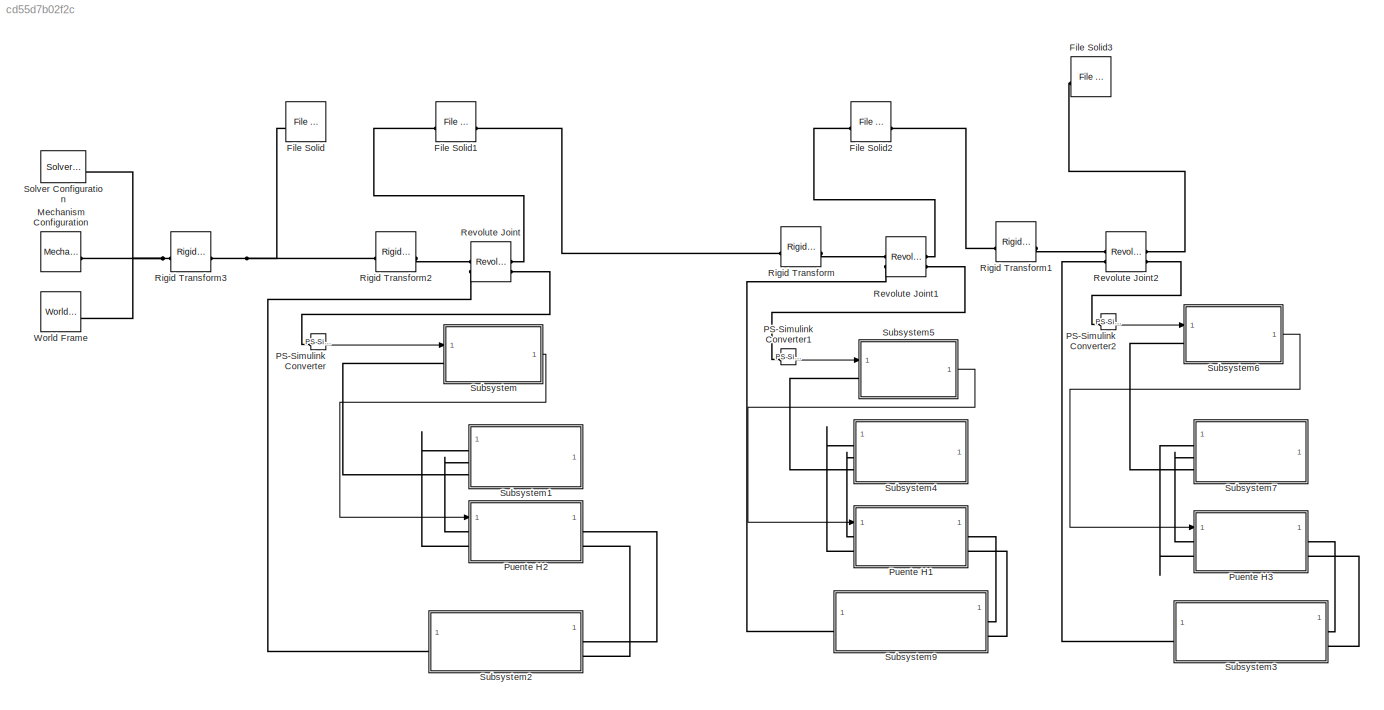
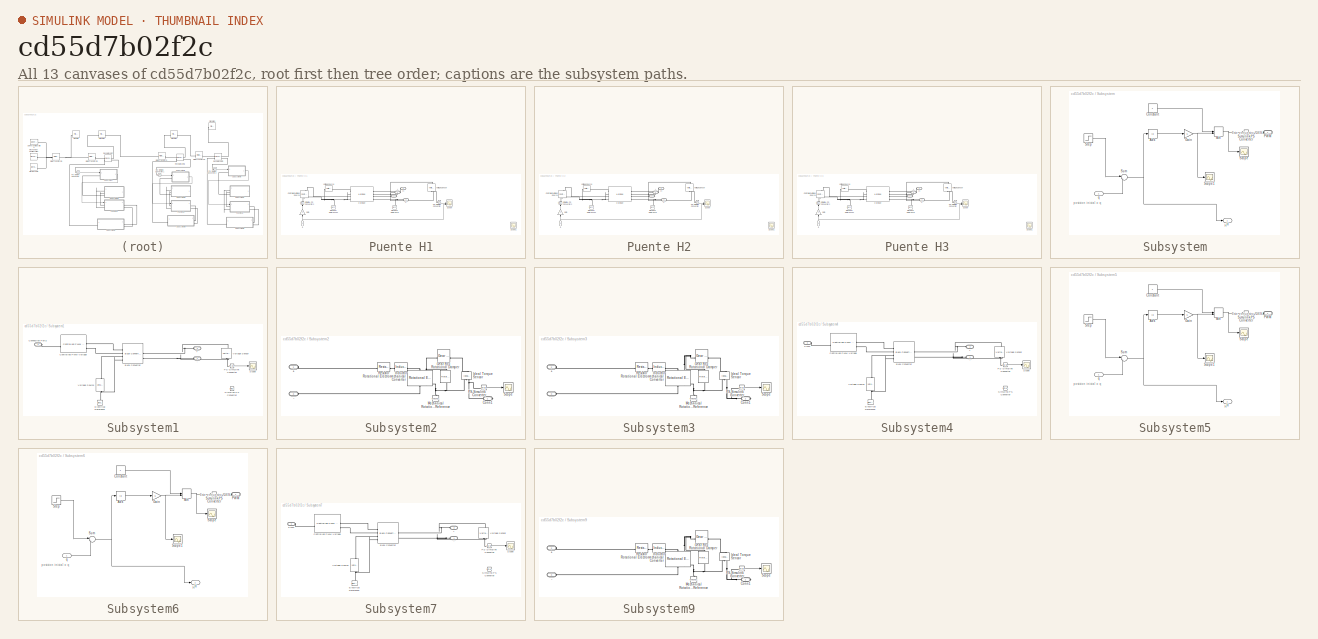
[diagram: thumbnail index - all 13 canvases of the model, root first then tree order]
MODEL slx_cd55d7b02f2c
KIND model
CONFIG AbsTol = auto
CONFIG EnableMultiTasking = off
CONFIG FixedStep = auto
CONFIG MaxStep = auto
CONFIG MinStep = auto
CONFIG RelTol = 1e-3
CONFIG SampleTimeConstraint = Unconstrained
CONFIG SolverName = VariableStepAuto
CONFIG StartTime = 0.0
CONFIG StopTime = 1
BLOCK [Reference] File Solid  REF=sm_lib/Body Elements/File Solid
  SourceBlock = sm_lib/Body Elements/File Solid
  SourceType = File Solid
BLOCK [Reference] File Solid1  REF=sm_lib/Body Elements/File Solid
  SourceBlock = sm_lib/Body Elements/File Solid
  SourceType = File Solid
BLOCK [Reference] File Solid2  REF=sm_lib/Body Elements/File Solid
  SourceBlock = sm_lib/Body Elements/File Solid
  SourceType = File Solid
BLOCK [Reference] File Solid3  REF=sm_lib/Body Elements/File Solid
  SourceBlock = sm_lib/Body Elements/File Solid
  SourceType = File Solid
BLOCK [Reference] Mechanism Configuration  REF=sm_lib/Utilities/Mechanism
Configuration
  SourceBlock = sm_lib/Utilities/Mechanism\nConfiguration
  SourceType = Mechanism\nConfiguration
BLOCK [Reference] PS-Simulink Converter  REF=nesl_utility/PS-Simulink
Converter
  SourceBlock = nesl_utility/PS-Simulink\nConverter
  SourceType = PS-Simulink\nConverter
BLOCK [Reference] PS-Simulink Converter1  REF=nesl_utility/PS-Simulink
Converter
  SourceBlock = nesl_utility/PS-Simulink\nConverter
  SourceType = PS-Simulink\nConverter
BLOCK [Reference] PS-Simulink Converter2  REF=nesl_utility/PS-Simulink
Converter
  SourceBlock = nesl_utility/PS-Simulink\nConverter
  SourceType = PS-Simulink\nConverter
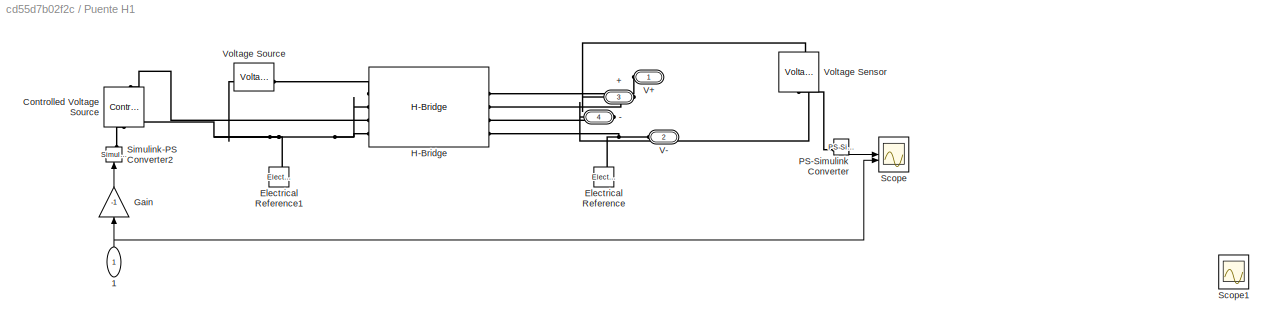
BLOCK [SubSystem] Puente H1
BLOCK [PMIOPort] Puente H1/+
  NameLocation = top
  Port = 3
  Side = Right
BLOCK [PMIOPort] Puente H1/-
  NameLocation = top
  Port = 4
  Side = Right
BLOCK [Inport] Puente H1/1
  NameLocation = right
BLOCK [Reference] Puente H1/Controlled Voltage Source  REF=fl_lib/Electrical/Electrical Sources/Controlled Voltage
Source
  NameLocation = right
  SourceBlock = fl_lib/Electrical/Electrical Sources/Controlled Voltage\nSource
  SourceType = Controlled Voltage\nSource
BLOCK [Reference] Puente H1/Electrical Reference  REF=fl_lib/Electrical/Electrical Elements/Electrical Reference
  NameLocation = right
  SourceBlock = fl_lib/Electrical/Electrical Elements/Electrical Reference
  SourceType = Electrical Reference
BLOCK [Reference] Puente H1/Electrical Reference1  REF=fl_lib/Electrical/Electrical Elements/Electrical Reference
  NameLocation = right
  SourceBlock = fl_lib/Electrical/Electrical Elements/Electrical Reference
  SourceType = Electrical Reference
BLOCK [Gain] Puente H1/Gain
  Gain = -1
  NameLocation = right
BLOCK [Reference] Puente H1/H-Bridge  REF=ee_lib/Semiconductors &
Converters/Converters/H-Bridge
  SourceBlock = ee_lib/Semiconductors &\nConverters/Converters/H-Bridge
  SourceType = H-Bridge
BLOCK [Reference] Puente H1/PS-Simulink Converter  REF=nesl_utility/PS-Simulink
Converter
  SourceBlock = nesl_utility/PS-Simulink\nConverter
  SourceType = PS-Simulink\nConverter
BLOCK [Scope] Puente H1/Scope
  ActiveDisplayYMaximum = 26.96741
  ActiveDisplayYMinimum = -21.42344
  ContainerLayout = {"WindowBounds":[320,156,1280,768],"gridDimensions":{"w":1,"h":1},"tileCount":1,"tileCoverage":1,"columnWeights":1,"rowWeights":1,"tileOccupancy":{"children":[{"id":"/Scope8"},{"id":"/Puente H3/Scope"},{"id":"/Scope5"},{"id":"/Puente H2/Scope"},{"id":"/Scope1"}]}}  <repeated x3 — deduplicated; at blocks: Scope>
  DataLoggingVariableName = ScopeData3
  Floating = off
  GraphicalSettings = {"GraphicalSettings":{"LegacySettings":true,"Style":{"AxesScalingProperties":{"ScaleAxesLimitsAtStop":false},"Style":{"AxesColor":"[0 0 0]","ChannelNames":[""],"ColorOrder":"[1 0.909803921568627 0.392156862745098;0.149019607843137 0.549019607843137 0.866666666666667;0.96078431372549 0.466666666666667 0.16078431372549;0.286274509803922 0.858823529411765 0.250980392156863;0.752941176470588 0.3607843...<+516ch>  <repeated x3 — deduplicated; at blocks: Scope>
  MultipleDisplayCache = [{"MaxYLimMag":26.96741,"MaxYLimReal":26.96741,"MinYLimMag":0,"MinYLimReal":-21.42344,"PlotAsMagnitudePhase":false,"ShowGrid":true,"ShowLegend":false,"Title":"%<SignalLabel>","YLabel":""}]  <repeated x3 — deduplicated; at blocks: Scope>
  NumInputPorts = 2
  ScopeFrameLocation = container
  WasSavedAsWebScope = on
  WindowPosition = [320.000000,156.000000,1280.000000,768.000000,]
BLOCK [Scope] Puente H1/Scope1
  ActiveDisplayYMaximum = 1.9626
  ActiveDisplayYMinimum = -1.9554
  DataLoggingVariableName = ScopeData5
  Floating = off
  GraphicalSettings = {"GraphicalSettings":{"LegacySettings":true,"Style":{"AxesScalingProperties":{"ScaleAxesLimitsAtStop":false},"Style":{"AxesColor":"[0 0 0]","ChannelNames":[""],"ColorOrder":"[1 0.909803921568627 0.392156862745098;0.149019607843137 0.549019607843137 0.866666666666667;0.96078431372549 0.466666666666667 0.16078431372549;0.286274509803922 0.858823529411765 0.250980392156863;0.752941176470588 0.3607843...<+513ch>  <repeated x3 — deduplicated; at blocks: Scope1>
  MultipleDisplayCache = [{"MaxYLimMag":1.9626,"MaxYLimReal":1.9626,"MinYLimMag":0,"MinYLimReal":-1.9554,"PlotAsMagnitudePhase":false,"ShowGrid":true,"ShowLegend":false,"Title":"%<SignalLabel>","YLabel":""}]  <repeated x3 — deduplicated; at blocks: Scope1>
  NumInputPorts = 1
  WasSavedAsWebScope = on
BLOCK [Reference] Puente H1/Simulink-PS Converter2  REF=nesl_utility/Simulink-PS
Converter
  NameLocation = right
  SourceBlock = nesl_utility/Simulink-PS\nConverter
  SourceType = Simulink-PS\nConverter
BLOCK [PMIOPort] Puente H1/V+
  NameLocation = top
  Side = Left
BLOCK [PMIOPort] Puente H1/V-
  NameLocation = top
  Port = 2
  Side = Left
BLOCK [Reference] Puente H1/Voltage Sensor  REF=fl_lib/Electrical/Electrical Sensors/Voltage Sensor
  NameLocation = right
  SourceBlock = fl_lib/Electrical/Electrical Sensors/Voltage Sensor
  SourceType = Voltage Sensor
BLOCK [Reference] Puente H1/Voltage Source  REF=ee_lib/Sources/Voltage Source
  SourceBlock = ee_lib/Sources/Voltage Source
  SourceType = Voltage Source
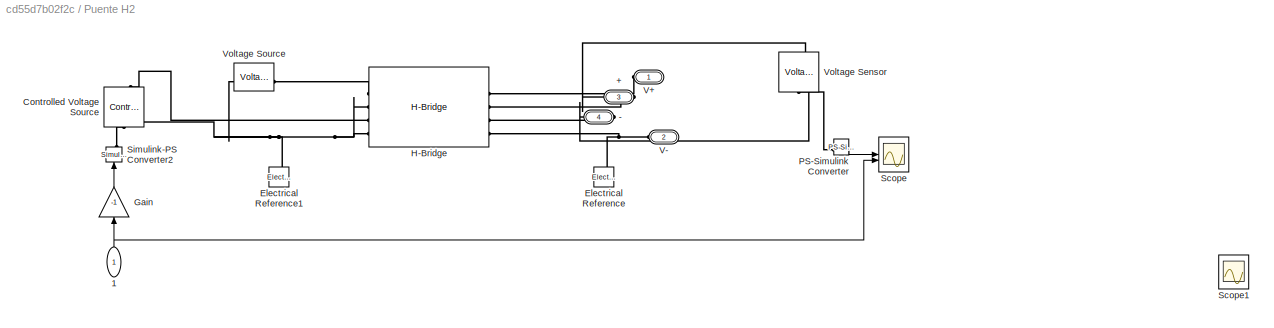
BLOCK [SubSystem] Puente H2
BLOCK [PMIOPort] Puente H2/+
  NameLocation = top
  Port = 3
  Side = Right
BLOCK [PMIOPort] Puente H2/-
  NameLocation = top
  Port = 4
  Side = Right
BLOCK [Inport] Puente H2/1
  NameLocation = right
BLOCK [Reference] Puente H2/Controlled Voltage Source  REF=fl_lib/Electrical/Electrical Sources/Controlled Voltage
Source
  NameLocation = right
  SourceBlock = fl_lib/Electrical/Electrical Sources/Controlled Voltage\nSource
  SourceType = Controlled Voltage\nSource
BLOCK [Reference] Puente H2/Electrical Reference  REF=fl_lib/Electrical/Electrical Elements/Electrical Reference
  NameLocation = right
  SourceBlock = fl_lib/Electrical/Electrical Elements/Electrical Reference
  SourceType = Electrical Reference
BLOCK [Reference] Puente H2/Electrical Reference1  REF=fl_lib/Electrical/Electrical Elements/Electrical Reference
  NameLocation = right
  SourceBlock = fl_lib/Electrical/Electrical Elements/Electrical Reference
  SourceType = Electrical Reference
BLOCK [Gain] Puente H2/Gain
  Gain = -1
  NameLocation = right
BLOCK [Reference] Puente H2/H-Bridge  REF=ee_lib/Semiconductors &
Converters/Converters/H-Bridge
  SourceBlock = ee_lib/Semiconductors &\nConverters/Converters/H-Bridge
  SourceType = H-Bridge
BLOCK [Reference] Puente H2/PS-Simulink Converter  REF=nesl_utility/PS-Simulink
Converter
  SourceBlock = nesl_utility/PS-Simulink\nConverter
  SourceType = PS-Simulink\nConverter
BLOCK [Scope] Puente H2/Scope
  ActiveDisplayYMaximum = 26.96741
  ActiveDisplayYMinimum = -21.42344
  DataLoggingVariableName = ScopeData3
  Floating = off
  NumInputPorts = 2
  ScopeFrameLocation = container
  WasSavedAsWebScope = on
  WindowPosition = [320.000000,156.000000,1280.000000,768.000000,]
BLOCK [Scope] Puente H2/Scope1
  ActiveDisplayYMaximum = 1.9626
  ActiveDisplayYMinimum = -1.9554
  DataLoggingVariableName = ScopeData5
  Floating = off
  NumInputPorts = 1
  WasSavedAsWebScope = on
BLOCK [Reference] Puente H2/Simulink-PS Converter2  REF=nesl_utility/Simulink-PS
Converter
  NameLocation = right
  SourceBlock = nesl_utility/Simulink-PS\nConverter
  SourceType = Simulink-PS\nConverter
BLOCK [PMIOPort] Puente H2/V+
  NameLocation = top
  Side = Left
BLOCK [PMIOPort] Puente H2/V-
  NameLocation = top
  Port = 2
  Side = Left
BLOCK [Reference] Puente H2/Voltage Sensor  REF=fl_lib/Electrical/Electrical Sensors/Voltage Sensor
  NameLocation = right
  SourceBlock = fl_lib/Electrical/Electrical Sensors/Voltage Sensor
  SourceType = Voltage Sensor
BLOCK [Reference] Puente H2/Voltage Source  REF=ee_lib/Sources/Voltage Source
  SourceBlock = ee_lib/Sources/Voltage Source
  SourceType = Voltage Source
BLOCK [SubSystem] Puente H3
BLOCK [PMIOPort] Puente H3/+
  NameLocation = top
  Port = 3
  Side = Right
BLOCK [PMIOPort] Puente H3/-
  NameLocation = top
  Port = 4
  Side = Right
BLOCK [Inport] Puente H3/1
  NameLocation = right
BLOCK [Reference] Puente H3/Controlled Voltage Source  REF=fl_lib/Electrical/Electrical Sources/Controlled Voltage
Source
  NameLocation = right
  SourceBlock = fl_lib/Electrical/Electrical Sources/Controlled Voltage\nSource
  SourceType = Controlled Voltage\nSource
BLOCK [Reference] Puente H3/Electrical Reference  REF=fl_lib/Electrical/Electrical Elements/Electrical Reference
  NameLocation = right
  SourceBlock = fl_lib/Electrical/Electrical Elements/Electrical Reference
  SourceType = Electrical Reference
BLOCK [Reference] Puente H3/Electrical Reference1  REF=fl_lib/Electrical/Electrical Elements/Electrical Reference
  NameLocation = right
  SourceBlock = fl_lib/Electrical/Electrical Elements/Electrical Reference
  SourceType = Electrical Reference
BLOCK [Gain] Puente H3/Gain
  Gain = -1
  NameLocation = right
BLOCK [Reference] Puente H3/H-Bridge  REF=ee_lib/Semiconductors &
Converters/Converters/H-Bridge
  SourceBlock = ee_lib/Semiconductors &\nConverters/Converters/H-Bridge
  SourceType = H-Bridge
BLOCK [Reference] Puente H3/PS-Simulink Converter  REF=nesl_utility/PS-Simulink
Converter
  SourceBlock = nesl_utility/PS-Simulink\nConverter
  SourceType = PS-Simulink\nConverter
BLOCK [Scope] Puente H3/Scope
  ActiveDisplayYMaximum = 26.96741
  ActiveDisplayYMinimum = -21.42344
  DataLoggingVariableName = ScopeData3
  Floating = off
  NumInputPorts = 2
  ScopeFrameLocation = container
  WasSavedAsWebScope = on
  WindowPosition = [320.000000,156.000000,1280.000000,768.000000,]
BLOCK [Scope] Puente H3/Scope1
  ActiveDisplayYMaximum = 1.9626
  ActiveDisplayYMinimum = -1.9554
  DataLoggingVariableName = ScopeData5
  Floating = off
  NumInputPorts = 1
  WasSavedAsWebScope = on
BLOCK [Reference] Puente H3/Simulink-PS Converter2  REF=nesl_utility/Simulink-PS
Converter
  NameLocation = right
  SourceBlock = nesl_utility/Simulink-PS\nConverter
  SourceType = Simulink-PS\nConverter
BLOCK [PMIOPort] Puente H3/V+
  NameLocation = top
  Side = Left
BLOCK [PMIOPort] Puente H3/V-
  NameLocation = top
  Port = 2
  Side = Left
BLOCK [Reference] Puente H3/Voltage Sensor  REF=fl_lib/Electrical/Electrical Sensors/Voltage Sensor
  NameLocation = right
  SourceBlock = fl_lib/Electrical/Electrical Sensors/Voltage Sensor
  SourceType = Voltage Sensor
BLOCK [Reference] Puente H3/Voltage Source  REF=ee_lib/Sources/Voltage Source
  SourceBlock = ee_lib/Sources/Voltage Source
  SourceType = Voltage Source
BLOCK [Reference] Revolute Joint  REF=sm_lib/Joints/Revolute Joint
  SourceBlock = sm_lib/Joints/Revolute Joint
  SourceType = Revolute Joint
BLOCK [Reference] Revolute Joint1  REF=sm_lib/Joints/Revolute Joint
  SourceBlock = sm_lib/Joints/Revolute Joint
  SourceType = Revolute Joint
BLOCK [Reference] Revolute Joint2  REF=sm_lib/Joints/Revolute Joint
  SourceBlock = sm_lib/Joints/Revolute Joint
  SourceType = Revolute Joint
BLOCK [Reference] Rigid Transform  REF=sm_lib/Frames and
Transforms/Rigid
Transform
  SourceBlock = sm_lib/Frames and\nTransforms/Rigid\nTransform
  SourceType = Rigid\nTransform
BLOCK [Reference] Rigid Transform1  REF=sm_lib/Frames and
Transforms/Rigid
Transform
  SourceBlock = sm_lib/Frames and\nTransforms/Rigid\nTransform
  SourceType = Rigid\nTransform
BLOCK [Reference] Rigid Transform2  REF=sm_lib/Frames and
Transforms/Rigid
Transform
  SourceBlock = sm_lib/Frames and\nTransforms/Rigid\nTransform
  SourceType = Rigid\nTransform
BLOCK [Reference] Rigid Transform3  REF=sm_lib/Frames and
Transforms/Rigid
Transform
  SourceBlock = sm_lib/Frames and\nTransforms/Rigid\nTransform
  SourceType = Rigid\nTransform
BLOCK [Reference] Solver Configuration  REF=nesl_utility/Solver
Configuration
  SourceBlock = nesl_utility/Solver\nConfiguration
  SourceType = Solver\nConfiguration
BLOCK [SubSystem] Subsystem
BLOCK [Abs] Subsystem/Abs
  SaturateOnIntegerOverflow = off
BLOCK [Constant] Subsystem/Constant
BLOCK [Gain] Subsystem/Gain
  Gain = 5
BLOCK [Outport] Subsystem/H
BLOCK [MinMax] Subsystem/Min
  Inputs = 2
BLOCK [PMIOPort] Subsystem/PWM
  NameLocation = top
  Side = Left
BLOCK [Scope] Subsystem/Scope
  Floating = off
  GraphicalSettings = {"GraphicalSettings":{"LegacySettings":true,"Style":{"Style":{"PlotType":"Auto"}}}}
  NumInputPorts = 1
  WasSavedAsWebScope = on
BLOCK [Scope] Subsystem/Scope1
  DataLoggingVariableName = ScopeData1
  Floating = off
  GraphicalSettings = {"GraphicalSettings":{"LegacySettings":true,"Style":{"Style":{"PlotType":"Auto"}}}}
  NumInputPorts = 1
  WasSavedAsWebScope = on
BLOCK [Reference] Subsystem/Simulink-PS Converter  REF=nesl_utility/Simulink-PS
Converter
  SourceBlock = nesl_utility/Simulink-PS\nConverter
  SourceType = Simulink-PS\nConverter
BLOCK [Step] Subsystem/Step
  After = pi/2
  SampleTime = 0
BLOCK [Sum] Subsystem/Sum
  Inputs = |+-
BLOCK [Inport] Subsystem/q
BLOCK [SubSystem] Subsystem1
BLOCK [PMIOPort] Subsystem1/+
  NameLocation = top
  Port = 2
  Side = Left
BLOCK [PMIOPort] Subsystem1/-
  NameLocation = top
  Side = Left
BLOCK [Reference] Subsystem1/Buck Converter  REF=ee_lib/Semiconductors &
Converters/Converters/Buck Converter
  SourceBlock = ee_lib/Semiconductors &\nConverters/Converters/Buck Converter
  SourceType = Buck Converter
BLOCK [PMIOPort] Subsystem1/Connection Port2
  Port = 3
  Side = Left
BLOCK [Reference] Subsystem1/Controlled PWM Voltage  REF=ee_lib/Integrated Circuits/Controlled PWM
Voltage
  SourceBlock = ee_lib/Integrated Circuits/Controlled PWM\nVoltage
  SourceType = Controlled PWM\nVoltage
BLOCK [Reference] Subsystem1/Electrical Reference  REF=fl_lib/Electrical/Electrical Elements/Electrical Reference
  NameLocation = right
  SourceBlock = fl_lib/Electrical/Electrical Elements/Electrical Reference
  SourceType = Electrical Reference
BLOCK [Reference] Subsystem1/PS-Simulink Converter  REF=nesl_utility/PS-Simulink
Converter
  SourceBlock = nesl_utility/PS-Simulink\nConverter
  SourceType = PS-Simulink\nConverter
BLOCK [Scope] Subsystem1/Scope
  DataLoggingVariableName = ScopeData2
  Floating = off
  GraphicalSettings = {"GraphicalSettings":{"LegacySettings":true,"Style":{"Style":{"PlotType":"Auto"}}}}
  NumInputPorts = 1
  WasSavedAsWebScope = on
BLOCK [Reference] Subsystem1/Simulink-PS Converter  REF=nesl_utility/Simulink-PS
Converter
  SourceBlock = nesl_utility/Simulink-PS\nConverter
  SourceType = Simulink-PS\nConverter
BLOCK [Reference] Subsystem1/Voltage Sensor  REF=fl_lib/Electrical/Electrical Sensors/Voltage Sensor
  NameLocation = right
  SourceBlock = fl_lib/Electrical/Electrical Sensors/Voltage Sensor
  SourceType = Voltage Sensor
BLOCK [Reference] Subsystem1/Voltage Source  REF=ee_lib/Sources/Voltage Source
  NameLocation = right
  SourceBlock = ee_lib/Sources/Voltage Source
  SourceType = Voltage Source
BLOCK [SubSystem] Subsystem2
  NameLocation = top
BLOCK [PMIOPort] Subsystem2/+
  NameLocation = top
  Port = 2
  Side = Left
BLOCK [PMIOPort] Subsystem2/-
  Port = 3
  Side = Left
BLOCK [PMIOPort] Subsystem2/Conn1
  Side = Right
BLOCK [Reference] Subsystem2/Gear Box  REF=fl_lib/Mechanical/Mechanisms/Gear Box
  SourceBlock = fl_lib/Mechanical/Mechanisms/Gear Box
  SourceType = Gear Box
BLOCK [Reference] Subsystem2/Ideal Torque Sensor  REF=fl_lib/Mechanical/Mechanical Sensors/Ideal Torque Sensor
  NameLocation = left
  SourceBlock = fl_lib/Mechanical/Mechanical Sensors/Ideal Torque Sensor
  SourceType = Ideal Torque Sensor
BLOCK [Reference] Subsystem2/Inductor  REF=fl_lib/Electrical/Electrical Elements/Inductor
  SourceBlock = fl_lib/Electrical/Electrical Elements/Inductor
  SourceType = Inductor
BLOCK [Reference] Subsystem2/Mechanical Rotational Reference  REF=fl_lib/Mechanical/Rotational Elements/Mechanical
Rotational Reference
  NameLocation = right
  SourceBlock = fl_lib/Mechanical/Rotational Elements/Mechanical\nRotational Reference
  SourceType = Mechanical\nRotational Reference
BLOCK [Reference] Subsystem2/PS-Simulink Converter  REF=nesl_utility/PS-Simulink
Converter
  SourceBlock = nesl_utility/PS-Simulink\nConverter
  SourceType = PS-Simulink\nConverter
BLOCK [Reference] Subsystem2/Resistor  REF=fl_lib/Electrical/Electrical Elements/Resistor
  SourceBlock = fl_lib/Electrical/Electrical Elements/Resistor
  SourceType = Resistor
BLOCK [Reference] Subsystem2/Rotational Damper  REF=fl_lib/Mechanical/Rotational Elements/Rotational Damper
  NameLocation = left
  SourceBlock = fl_lib/Mechanical/Rotational Elements/Rotational Damper
  SourceType = Rotational Damper
BLOCK [Reference] Subsystem2/Rotational Electromechanical Converter  REF=fl_lib/Electrical/Electrical Elements/Rotational
Electromechanical
Converter
  NameLocation = right
  SourceBlock = fl_lib/Electrical/Electrical Elements/Rotational\nElectromechanical\nConverter
  SourceType = Rotational\nElectromechanical\nConverter
BLOCK [Scope] Subsystem2/Scope
  DataLoggingVariableName = ScopeData4
  Floating = off
  GraphicalSettings = {"GraphicalSettings":{"LegacySettings":true,"Style":{"Style":{"PlotType":"Auto"}}}}
  NumInputPorts = 1
  ScopeFrameLocation = window
  WasSavedAsWebScope = on
  WindowPosition = [680.000000,330.000000,560.000000,420.000000,]
BLOCK [SubSystem] Subsystem3
  NameLocation = top
BLOCK [PMIOPort] Subsystem3/+
  NameLocation = top
  Port = 2
  Side = Left
BLOCK [PMIOPort] Subsystem3/-
  Port = 3
  Side = Left
BLOCK [PMIOPort] Subsystem3/Conn1
  Side = Right
BLOCK [Reference] Subsystem3/Gear Box  REF=fl_lib/Mechanical/Mechanisms/Gear Box
  SourceBlock = fl_lib/Mechanical/Mechanisms/Gear Box
  SourceType = Gear Box
BLOCK [Reference] Subsystem3/Ideal Torque Sensor  REF=fl_lib/Mechanical/Mechanical Sensors/Ideal Torque Sensor
  NameLocation = left
  SourceBlock = fl_lib/Mechanical/Mechanical Sensors/Ideal Torque Sensor
  SourceType = Ideal Torque Sensor
BLOCK [Reference] Subsystem3/Inductor  REF=fl_lib/Electrical/Electrical Elements/Inductor
  SourceBlock = fl_lib/Electrical/Electrical Elements/Inductor
  SourceType = Inductor
BLOCK [Reference] Subsystem3/Mechanical Rotational Reference  REF=fl_lib/Mechanical/Rotational Elements/Mechanical
Rotational Reference
  NameLocation = right
  SourceBlock = fl_lib/Mechanical/Rotational Elements/Mechanical\nRotational Reference
  SourceType = Mechanical\nRotational Reference
BLOCK [Reference] Subsystem3/PS-Simulink Converter  REF=nesl_utility/PS-Simulink
Converter
  SourceBlock = nesl_utility/PS-Simulink\nConverter
  SourceType = PS-Simulink\nConverter
BLOCK [Reference] Subsystem3/Resistor  REF=fl_lib/Electrical/Electrical Elements/Resistor
  SourceBlock = fl_lib/Electrical/Electrical Elements/Resistor
  SourceType = Resistor
BLOCK [Reference] Subsystem3/Rotational Damper  REF=fl_lib/Mechanical/Rotational Elements/Rotational Damper
  NameLocation = left
  SourceBlock = fl_lib/Mechanical/Rotational Elements/Rotational Damper
  SourceType = Rotational Damper
BLOCK [Reference] Subsystem3/Rotational Electromechanical Converter  REF=fl_lib/Electrical/Electrical Elements/Rotational
Electromechanical
Converter
  NameLocation = right
  SourceBlock = fl_lib/Electrical/Electrical Elements/Rotational\nElectromechanical\nConverter
  SourceType = Rotational\nElectromechanical\nConverter
BLOCK [Scope] Subsystem3/Scope
  DataLoggingVariableName = ScopeData4
  Floating = off
  GraphicalSettings = {"GraphicalSettings":{"LegacySettings":true,"Style":{"Style":{"PlotType":"Auto"}}}}
  NumInputPorts = 1
  ScopeFrameLocation = window
  WasSavedAsWebScope = on
  WindowPosition = [680.000000,330.000000,560.000000,420.000000,]
BLOCK [SubSystem] Subsystem4
BLOCK [PMIOPort] Subsystem4/+
  NameLocation = top
  Port = 2
  Side = Left
BLOCK [PMIOPort] Subsystem4/-
  NameLocation = top
  Side = Left
BLOCK [Reference] Subsystem4/Buck Converter  REF=ee_lib/Semiconductors &
Converters/Converters/Buck Converter
  SourceBlock = ee_lib/Semiconductors &\nConverters/Converters/Buck Converter
  SourceType = Buck Converter
BLOCK [Reference] Subsystem4/Controlled PWM Voltage  REF=ee_lib/Integrated Circuits/Controlled PWM
Voltage
  SourceBlock = ee_lib/Integrated Circuits/Controlled PWM\nVoltage
  SourceType = Controlled PWM\nVoltage
BLOCK [Reference] Subsystem4/Electrical Reference  REF=fl_lib/Electrical/Electrical Elements/Electrical Reference
  NameLocation = right
  SourceBlock = fl_lib/Electrical/Electrical Elements/Electrical Reference
  SourceType = Electrical Reference
BLOCK [Reference] Subsystem4/PS-Simulink Converter  REF=nesl_utility/PS-Simulink
Converter
  SourceBlock = nesl_utility/PS-Simulink\nConverter
  SourceType = PS-Simulink\nConverter
BLOCK [PMIOPort] Subsystem4/PWM
  Port = 3
  Side = Left
BLOCK [Scope] Subsystem4/Scope
  DataLoggingVariableName = ScopeData2
  Floating = off
  GraphicalSettings = {"GraphicalSettings":{"LegacySettings":true,"Style":{"Style":{"PlotType":"Auto"}}}}
  NumInputPorts = 1
  WasSavedAsWebScope = on
BLOCK [Reference] Subsystem4/Simulink-PS Converter  REF=nesl_utility/Simulink-PS
Converter
  SourceBlock = nesl_utility/Simulink-PS\nConverter
  SourceType = Simulink-PS\nConverter
BLOCK [Reference] Subsystem4/Voltage Sensor  REF=fl_lib/Electrical/Electrical Sensors/Voltage Sensor
  NameLocation = right
  SourceBlock = fl_lib/Electrical/Electrical Sensors/Voltage Sensor
  SourceType = Voltage Sensor
BLOCK [Reference] Subsystem4/Voltage Source  REF=ee_lib/Sources/Voltage Source
  NameLocation = right
  SourceBlock = ee_lib/Sources/Voltage Source
  SourceType = Voltage Source
BLOCK [SubSystem] Subsystem5
BLOCK [Abs] Subsystem5/Abs
  SaturateOnIntegerOverflow = off
BLOCK [Constant] Subsystem5/Constant
BLOCK [Gain] Subsystem5/Gain
  Gain = 5
BLOCK [Outport] Subsystem5/H
BLOCK [MinMax] Subsystem5/Min
  Inputs = 2
BLOCK [PMIOPort] Subsystem5/PWM
  NameLocation = top
  Side = Left
BLOCK [Scope] Subsystem5/Scope
  Floating = off
  GraphicalSettings = {"GraphicalSettings":{"LegacySettings":true,"Style":{"Style":{"PlotType":"Auto"}}}}
  NumInputPorts = 1
  WasSavedAsWebScope = on
BLOCK [Scope] Subsystem5/Scope1
  DataLoggingVariableName = ScopeData1
  Floating = off
  GraphicalSettings = {"GraphicalSettings":{"LegacySettings":true,"Style":{"Style":{"PlotType":"Auto"}}}}
  NumInputPorts = 1
  WasSavedAsWebScope = on
BLOCK [Reference] Subsystem5/Simulink-PS Converter  REF=nesl_utility/Simulink-PS
Converter
  SourceBlock = nesl_utility/Simulink-PS\nConverter
  SourceType = Simulink-PS\nConverter
BLOCK [Step] Subsystem5/Step
  SampleTime = 0
BLOCK [Sum] Subsystem5/Sum
  Inputs = |+-
BLOCK [Inport] Subsystem5/q
BLOCK [SubSystem] Subsystem6
BLOCK [Abs] Subsystem6/Abs
  SaturateOnIntegerOverflow = off
BLOCK [Constant] Subsystem6/Constant
BLOCK [Gain] Subsystem6/Gain
  Gain = 5
BLOCK [Outport] Subsystem6/H
BLOCK [MinMax] Subsystem6/Min
  Inputs = 2
BLOCK [PMIOPort] Subsystem6/PWM
  NameLocation = top
  Side = Left
BLOCK [Scope] Subsystem6/Scope
  Floating = off
  GraphicalSettings = {"GraphicalSettings":{"LegacySettings":true,"Style":{"Style":{"PlotType":"Auto"}}}}
  NumInputPorts = 1
  WasSavedAsWebScope = on
BLOCK [Scope] Subsystem6/Scope1
  DataLoggingVariableName = ScopeData1
  Floating = off
  GraphicalSettings = {"GraphicalSettings":{"LegacySettings":true,"Style":{"Style":{"PlotType":"Auto"}}}}
  NumInputPorts = 1
  WasSavedAsWebScope = on
BLOCK [Reference] Subsystem6/Simulink-PS Converter  REF=nesl_utility/Simulink-PS
Converter
  SourceBlock = nesl_utility/Simulink-PS\nConverter
  SourceType = Simulink-PS\nConverter
BLOCK [Step] Subsystem6/Step
  SampleTime = 0
BLOCK [Sum] Subsystem6/Sum
  Inputs = |+-
BLOCK [Inport] Subsystem6/q
BLOCK [SubSystem] Subsystem7
BLOCK [PMIOPort] Subsystem7/+
  NameLocation = top
  Port = 2
  Side = Left
BLOCK [PMIOPort] Subsystem7/-
  NameLocation = top
  Side = Left
BLOCK [Reference] Subsystem7/Buck Converter  REF=ee_lib/Semiconductors &
Converters/Converters/Buck Converter
  SourceBlock = ee_lib/Semiconductors &\nConverters/Converters/Buck Converter
  SourceType = Buck Converter
BLOCK [Reference] Subsystem7/Controlled PWM Voltage  REF=ee_lib/Integrated Circuits/Controlled PWM
Voltage
  SourceBlock = ee_lib/Integrated Circuits/Controlled PWM\nVoltage
  SourceType = Controlled PWM\nVoltage
BLOCK [Reference] Subsystem7/Electrical Reference  REF=fl_lib/Electrical/Electrical Elements/Electrical Reference
  NameLocation = right
  SourceBlock = fl_lib/Electrical/Electrical Elements/Electrical Reference
  SourceType = Electrical Reference
BLOCK [Reference] Subsystem7/PS-Simulink Converter  REF=nesl_utility/PS-Simulink
Converter
  SourceBlock = nesl_utility/PS-Simulink\nConverter
  SourceType = PS-Simulink\nConverter
BLOCK [PMIOPort] Subsystem7/PWM
  Port = 3
  Side = Left
BLOCK [Scope] Subsystem7/Scope
  DataLoggingVariableName = ScopeData2
  Floating = off
  GraphicalSettings = {"GraphicalSettings":{"LegacySettings":true,"Style":{"Style":{"PlotType":"Auto"}}}}
  NumInputPorts = 1
  WasSavedAsWebScope = on
BLOCK [Reference] Subsystem7/Simulink-PS Converter  REF=nesl_utility/Simulink-PS
Converter
  SourceBlock = nesl_utility/Simulink-PS\nConverter
  SourceType = Simulink-PS\nConverter
BLOCK [Reference] Subsystem7/Voltage Sensor  REF=fl_lib/Electrical/Electrical Sensors/Voltage Sensor
  NameLocation = right
  SourceBlock = fl_lib/Electrical/Electrical Sensors/Voltage Sensor
  SourceType = Voltage Sensor
BLOCK [Reference] Subsystem7/Voltage Source  REF=ee_lib/Sources/Voltage Source
  NameLocation = right
  SourceBlock = ee_lib/Sources/Voltage Source
  SourceType = Voltage Source
BLOCK [SubSystem] Subsystem9
  NameLocation = top
BLOCK [PMIOPort] Subsystem9/+
  NameLocation = top
  Port = 2
  Side = Left
BLOCK [PMIOPort] Subsystem9/-
  Port = 3
  Side = Left
BLOCK [PMIOPort] Subsystem9/Conn1
  Side = Right
BLOCK [Reference] Subsystem9/Gear Box  REF=fl_lib/Mechanical/Mechanisms/Gear Box
  SourceBlock = fl_lib/Mechanical/Mechanisms/Gear Box
  SourceType = Gear Box
BLOCK [Reference] Subsystem9/Ideal Torque Sensor  REF=fl_lib/Mechanical/Mechanical Sensors/Ideal Torque Sensor
  NameLocation = left
  SourceBlock = fl_lib/Mechanical/Mechanical Sensors/Ideal Torque Sensor
  SourceType = Ideal Torque Sensor
BLOCK [Reference] Subsystem9/Inductor  REF=fl_lib/Electrical/Electrical Elements/Inductor
  SourceBlock = fl_lib/Electrical/Electrical Elements/Inductor
  SourceType = Inductor
BLOCK [Reference] Subsystem9/Mechanical Rotational Reference  REF=fl_lib/Mechanical/Rotational Elements/Mechanical
Rotational Reference
  NameLocation = right
  SourceBlock = fl_lib/Mechanical/Rotational Elements/Mechanical\nRotational Reference
  SourceType = Mechanical\nRotational Reference
BLOCK [Reference] Subsystem9/PS-Simulink Converter  REF=nesl_utility/PS-Simulink
Converter
  SourceBlock = nesl_utility/PS-Simulink\nConverter
  SourceType = PS-Simulink\nConverter
BLOCK [Reference] Subsystem9/Resistor  REF=fl_lib/Electrical/Electrical Elements/Resistor
  SourceBlock = fl_lib/Electrical/Electrical Elements/Resistor
  SourceType = Resistor
BLOCK [Reference] Subsystem9/Rotational Damper  REF=fl_lib/Mechanical/Rotational Elements/Rotational Damper
  NameLocation = left
  SourceBlock = fl_lib/Mechanical/Rotational Elements/Rotational Damper
  SourceType = Rotational Damper
BLOCK [Reference] Subsystem9/Rotational Electromechanical Converter  REF=fl_lib/Electrical/Electrical Elements/Rotational
Electromechanical
Converter
  NameLocation = right
  SourceBlock = fl_lib/Electrical/Electrical Elements/Rotational\nElectromechanical\nConverter
  SourceType = Rotational\nElectromechanical\nConverter
BLOCK [Scope] Subsystem9/Scope
  DataLoggingVariableName = ScopeData4
  Floating = off
  GraphicalSettings = {"GraphicalSettings":{"LegacySettings":true,"Style":{"Style":{"PlotType":"Auto"}}}}
  NumInputPorts = 1
  ScopeFrameLocation = window
  WasSavedAsWebScope = on
  WindowPosition = [680.000000,330.000000,560.000000,420.000000,]
BLOCK [Reference] World Frame  REF=sm_lib/Frames and
Transforms/World Frame
  SourceBlock = sm_lib/Frames and\nTransforms/World Frame
  SourceType = World Frame
ANNOTATION Subsystem: posicion inicial o q
ANNOTATION Subsystem: Este es nuestro PWM
ANNOTATION Subsystem: H
ANNOTATION Subsystem5: posicion inicial o q
ANNOTATION Subsystem5: Este es nuestro PWM
ANNOTATION Subsystem5: H
ANNOTATION Subsystem6: posicion inicial o q
ANNOTATION Subsystem6: Este es nuestro PWM
ANNOTATION Subsystem6: H
LINE PS-Simulink Converter1:1 -> Subsystem5:1
LINE PS-Simulink Converter2:1 -> Subsystem6:1
LINE PS-Simulink Converter:1 -> Subsystem:1
NET Puente H1/1:1 -> Puente H1/Gain:1, Puente H1/Scope:2
LINE Puente H1/Gain:1 -> Puente H1/Simulink-PS Converter2:1
LINE Puente H1/PS-Simulink Converter:1 -> Puente H1/Scope:1
NET Puente H2/1:1 -> Puente H2/Gain:1, Puente H2/Scope:2
LINE Puente H2/Gain:1 -> Puente H2/Simulink-PS Converter2:1
LINE Puente H2/PS-Simulink Converter:1 -> Puente H2/Scope:1
NET Puente H3/1:1 -> Puente H3/Gain:1, Puente H3/Scope:2
LINE Puente H3/Gain:1 -> Puente H3/Simulink-PS Converter2:1
LINE Puente H3/PS-Simulink Converter:1 -> Puente H3/Scope:1
LINE Subsystem/Abs:1 -> Subsystem/Gain:1
LINE Subsystem/Constant:1 -> Subsystem/Min:1
NET Subsystem/Gain:1 -> Subsystem/Min:2, Subsystem/Scope1:1
NET Subsystem/Min:1 -> Subsystem/Scope:1, Subsystem/Simulink-PS Converter:1
LINE Subsystem/Step:1 -> Subsystem/Sum:1
NET Subsystem/Sum:1 -> Subsystem/Abs:1, Subsystem/H:1
LINE Subsystem/q:1 -> Subsystem/Sum:2
LINE Subsystem1/PS-Simulink Converter:1 -> Subsystem1/Scope:1
LINE Subsystem2/PS-Simulink Converter:1 -> Subsystem2/Scope:1
LINE Subsystem3/PS-Simulink Converter:1 -> Subsystem3/Scope:1
LINE Subsystem4/PS-Simulink Converter:1 -> Subsystem4/Scope:1
LINE Subsystem5/Abs:1 -> Subsystem5/Gain:1
LINE Subsystem5/Constant:1 -> Subsystem5/Min:1
NET Subsystem5/Gain:1 -> Subsystem5/Min:2, Subsystem5/Scope1:1
NET Subsystem5/Min:1 -> Subsystem5/Scope:1, Subsystem5/Simulink-PS Converter:1
LINE Subsystem5/Step:1 -> Subsystem5/Sum:1
NET Subsystem5/Sum:1 -> Subsystem5/Abs:1, Subsystem5/H:1
LINE Subsystem5/q:1 -> Subsystem5/Sum:2
LINE Subsystem5:1 -> Puente H1:1
LINE Subsystem6/Abs:1 -> Subsystem6/Gain:1
LINE Subsystem6/Constant:1 -> Subsystem6/Min:1
NET Subsystem6/Gain:1 -> Subsystem6/Min:2, Subsystem6/Scope1:1
NET Subsystem6/Min:1 -> Subsystem6/Scope:1, Subsystem6/Simulink-PS Converter:1
LINE Subsystem6/Step:1 -> Subsystem6/Sum:1
NET Subsystem6/Sum:1 -> Subsystem6/Abs:1, Subsystem6/H:1
LINE Subsystem6/q:1 -> Subsystem6/Sum:2
LINE Subsystem6:1 -> Puente H3:1
LINE Subsystem7/PS-Simulink Converter:1 -> Subsystem7/Scope:1
LINE Subsystem9/PS-Simulink Converter:1 -> Subsystem9/Scope:1
LINE Subsystem:1 -> Puente H2:1
PLINE File Solid1:LConn1 -- Revolute Joint:RConn1
PLINE File Solid1:RConn1 -- Rigid Transform:LConn1
PLINE File Solid2:LConn1 -- Revolute Joint1:RConn1
PLINE File Solid2:RConn1 -- Rigid Transform1:LConn1
PLINE File Solid3:LConn1 -- Revolute Joint2:RConn1
PNET net1: File Solid:LConn1 -- Rigid Transform2:LConn1 -- Rigid Transform3:RConn1
PNET net2: Mechanism Configuration:RConn1 -- Rigid Transform3:LConn1 -- Solver Configuration:RConn1 -- World Frame:RConn1
PLINE PS-Simulink Converter1:LConn1 -- Revolute Joint1:RConn2
PLINE PS-Simulink Converter2:LConn1 -- Revolute Joint2:RConn2
PLINE PS-Simulink Converter:LConn1 -- Revolute Joint:RConn2
PNET net3: Puente H1/+:RConn1 -- Puente H1/H-Bridge:RConn2 -- Puente H1/Voltage Sensor:LConn1
PNET net4: Puente H1/-:RConn1 -- Puente H1/H-Bridge:RConn3 -- Puente H1/Voltage Sensor:RConn2
PLINE Puente H1/Controlled Voltage Source:LConn1 -- Puente H1/H-Bridge:LConn3
PLINE Puente H1/Controlled Voltage Source:RConn1 -- Puente H1/Simulink-PS Converter2:RConn1
PNET net5: Puente H1/Controlled Voltage Source:RConn2 -- Puente H1/Electrical Reference1:LConn1 -- Puente H1/H-Bridge:LConn2 -- Puente H1/H-Bridge:LConn4 -- Puente H1/Voltage Source:RConn1
PNET net6: Puente H1/Electrical Reference:LConn1 -- Puente H1/H-Bridge:RConn4 -- Puente H1/V-:RConn1
PLINE Puente H1/H-Bridge:LConn1 -- Puente H1/Voltage Source:LConn1
PLINE Puente H1/H-Bridge:RConn1 -- Puente H1/V+:RConn1
PLINE Puente H1/PS-Simulink Converter:LConn1 -- Puente H1/Voltage Sensor:RConn1
PLINE Puente H1:LConn1 -- Subsystem4:LConn2
PLINE Puente H1:LConn2 -- Subsystem4:LConn1
PLINE Puente H1:RConn1 -- Subsystem9:LConn1
PLINE Puente H1:RConn2 -- Subsystem9:LConn2
PNET net7: Puente H2/+:RConn1 -- Puente H2/H-Bridge:RConn2 -- Puente H2/Voltage Sensor:LConn1
PNET net8: Puente H2/-:RConn1 -- Puente H2/H-Bridge:RConn3 -- Puente H2/Voltage Sensor:RConn2
PLINE Puente H2/Controlled Voltage Source:LConn1 -- Puente H2/H-Bridge:LConn3
PLINE Puente H2/Controlled Voltage Source:RConn1 -- Puente H2/Simulink-PS Converter2:RConn1
PNET net9: Puente H2/Controlled Voltage Source:RConn2 -- Puente H2/Electrical Reference1:LConn1 -- Puente H2/H-Bridge:LConn2 -- Puente H2/H-Bridge:LConn4 -- Puente H2/Voltage Source:RConn1
PNET net10: Puente H2/Electrical Reference:LConn1 -- Puente H2/H-Bridge:RConn4 -- Puente H2/V-:RConn1
PLINE Puente H2/H-Bridge:LConn1 -- Puente H2/Voltage Source:LConn1
PLINE Puente H2/H-Bridge:RConn1 -- Puente H2/V+:RConn1
PLINE Puente H2/PS-Simulink Converter:LConn1 -- Puente H2/Voltage Sensor:RConn1
PLINE Puente H2:LConn1 -- Subsystem1:LConn2
PLINE Puente H2:LConn2 -- Subsystem1:LConn1
PLINE Puente H2:RConn1 -- Subsystem2:LConn1
PLINE Puente H2:RConn2 -- Subsystem2:LConn2
PNET net11: Puente H3/+:RConn1 -- Puente H3/H-Bridge:RConn2 -- Puente H3/Voltage Sensor:LConn1
PNET net12: Puente H3/-:RConn1 -- Puente H3/H-Bridge:RConn3 -- Puente H3/Voltage Sensor:RConn2
PLINE Puente H3/Controlled Voltage Source:LConn1 -- Puente H3/H-Bridge:LConn3
PLINE Puente H3/Controlled Voltage Source:RConn1 -- Puente H3/Simulink-PS Converter2:RConn1
PNET net13: Puente H3/Controlled Voltage Source:RConn2 -- Puente H3/Electrical Reference1:LConn1 -- Puente H3/H-Bridge:LConn2 -- Puente H3/H-Bridge:LConn4 -- Puente H3/Voltage Source:RConn1
PNET net14: Puente H3/Electrical Reference:LConn1 -- Puente H3/H-Bridge:RConn4 -- Puente H3/V-:RConn1
PLINE Puente H3/H-Bridge:LConn1 -- Puente H3/Voltage Source:LConn1
PLINE Puente H3/H-Bridge:RConn1 -- Puente H3/V+:RConn1
PLINE Puente H3/PS-Simulink Converter:LConn1 -- Puente H3/Voltage Sensor:RConn1
PLINE Puente H3:LConn1 -- Subsystem7:LConn2
PLINE Puente H3:LConn2 -- Subsystem7:LConn1
PLINE Puente H3:RConn1 -- Subsystem3:LConn1
PLINE Puente H3:RConn2 -- Subsystem3:LConn2
PLINE Revolute Joint1:LConn1 -- Rigid Transform:RConn1
PLINE Revolute Joint1:LConn2 -- Subsystem9:RConn1
PLINE Revolute Joint2:LConn1 -- Rigid Transform1:RConn1
PLINE Revolute Joint2:LConn2 -- Subsystem3:RConn1
PLINE Revolute Joint:LConn1 -- Rigid Transform2:RConn1
PLINE Revolute Joint:LConn2 -- Subsystem2:RConn1
PLINE Subsystem/PWM:RConn1 -- Subsystem/Simulink-PS Converter:RConn1
PNET net15: Subsystem1/+:RConn1 -- Subsystem1/Buck Converter:RConn1 -- Subsystem1/Voltage Sensor:LConn1
PNET net16: Subsystem1/-:RConn1 -- Subsystem1/Buck Converter:RConn2 -- Subsystem1/Voltage Sensor:RConn2
PLINE Subsystem1/Buck Converter:LConn1 -- Subsystem1/Controlled PWM Voltage:RConn1
PLINE Subsystem1/Buck Converter:LConn2 -- Subsystem1/Controlled PWM Voltage:RConn2
PLINE Subsystem1/Buck Converter:LConn3 -- Subsystem1/Voltage Source:LConn1
PNET net17: Subsystem1/Buck Converter:LConn4 -- Subsystem1/Electrical Reference:LConn1 -- Subsystem1/Voltage Source:RConn1
PLINE Subsystem1/Connection Port2:RConn1 -- Subsystem1/Controlled PWM Voltage:LConn1
PLINE Subsystem1/PS-Simulink Converter:LConn1 -- Subsystem1/Voltage Sensor:RConn1
PLINE Subsystem1:LConn3 -- Subsystem:LConn1
PLINE Subsystem2/+:RConn1 -- Subsystem2/Resistor:LConn1
PLINE Subsystem2/-:RConn1 -- Subsystem2/Rotational Electromechanical Converter:RConn1
PNET net18: Subsystem2/Conn1:RConn1 -- Subsystem2/Ideal Torque Sensor:RConn2 -- Subsystem2/PS-Simulink Converter:LConn1
PNET net19: Subsystem2/Gear Box:LConn1 -- Subsystem2/Rotational Damper:LConn1 -- Subsystem2/Rotational Electromechanical Converter:LConn2
PLINE Subsystem2/Gear Box:RConn1 -- Subsystem2/Ideal Torque Sensor:LConn1
PNET net20: Subsystem2/Ideal Torque Sensor:RConn1 -- Subsystem2/Mechanical Rotational Reference:LConn1 -- Subsystem2/Rotational Damper:RConn1 -- Subsystem2/Rotational Electromechanical Converter:RConn2
PLINE Subsystem2/Inductor:LConn1 -- Subsystem2/Resistor:RConn1
PLINE Subsystem2/Inductor:RConn1 -- Subsystem2/Rotational Electromechanical Converter:LConn1
PLINE Subsystem3/+:RConn1 -- Subsystem3/Resistor:LConn1
PLINE Subsystem3/-:RConn1 -- Subsystem3/Rotational Electromechanical Converter:RConn1
PNET net21: Subsystem3/Conn1:RConn1 -- Subsystem3/Ideal Torque Sensor:RConn2 -- Subsystem3/PS-Simulink Converter:LConn1
PNET net22: Subsystem3/Gear Box:LConn1 -- Subsystem3/Rotational Damper:LConn1 -- Subsystem3/Rotational Electromechanical Converter:LConn2
PLINE Subsystem3/Gear Box:RConn1 -- Subsystem3/Ideal Torque Sensor:LConn1
PNET net23: Subsystem3/Ideal Torque Sensor:RConn1 -- Subsystem3/Mechanical Rotational Reference:LConn1 -- Subsystem3/Rotational Damper:RConn1 -- Subsystem3/Rotational Electromechanical Converter:RConn2
PLINE Subsystem3/Inductor:LConn1 -- Subsystem3/Resistor:RConn1
PLINE Subsystem3/Inductor:RConn1 -- Subsystem3/Rotational Electromechanical Converter:LConn1
PNET net24: Subsystem4/+:RConn1 -- Subsystem4/Buck Converter:RConn1 -- Subsystem4/Voltage Sensor:LConn1
PNET net25: Subsystem4/-:RConn1 -- Subsystem4/Buck Converter:RConn2 -- Subsystem4/Voltage Sensor:RConn2
PLINE Subsystem4/Buck Converter:LConn1 -- Subsystem4/Controlled PWM Voltage:RConn1
PLINE Subsystem4/Buck Converter:LConn2 -- Subsystem4/Controlled PWM Voltage:RConn2
PLINE Subsystem4/Buck Converter:LConn3 -- Subsystem4/Voltage Source:LConn1
PNET net26: Subsystem4/Buck Converter:LConn4 -- Subsystem4/Electrical Reference:LConn1 -- Subsystem4/Voltage Source:RConn1
PLINE Subsystem4/Controlled PWM Voltage:LConn1 -- Subsystem4/PWM:RConn1
PLINE Subsystem4/PS-Simulink Converter:LConn1 -- Subsystem4/Voltage Sensor:RConn1
PLINE Subsystem4:LConn3 -- Subsystem5:LConn1
PLINE Subsystem5/PWM:RConn1 -- Subsystem5/Simulink-PS Converter:RConn1
PLINE Subsystem6/PWM:RConn1 -- Subsystem6/Simulink-PS Converter:RConn1
PLINE Subsystem6:LConn1 -- Subsystem7:LConn3
PNET net27: Subsystem7/+:RConn1 -- Subsystem7/Buck Converter:RConn1 -- Subsystem7/Voltage Sensor:LConn1
PNET net28: Subsystem7/-:RConn1 -- Subsystem7/Buck Converter:RConn2 -- Subsystem7/Voltage Sensor:RConn2
PLINE Subsystem7/Buck Converter:LConn1 -- Subsystem7/Controlled PWM Voltage:RConn1
PLINE Subsystem7/Buck Converter:LConn2 -- Subsystem7/Controlled PWM Voltage:RConn2
PLINE Subsystem7/Buck Converter:LConn3 -- Subsystem7/Voltage Source:LConn1
PNET net29: Subsystem7/Buck Converter:LConn4 -- Subsystem7/Electrical Reference:LConn1 -- Subsystem7/Voltage Source:RConn1
PLINE Subsystem7/Controlled PWM Voltage:LConn1 -- Subsystem7/PWM:RConn1
PLINE Subsystem7/PS-Simulink Converter:LConn1 -- Subsystem7/Voltage Sensor:RConn1
PLINE Subsystem9/+:RConn1 -- Subsystem9/Resistor:LConn1
PLINE Subsystem9/-:RConn1 -- Subsystem9/Rotational Electromechanical Converter:RConn1
PNET net30: Subsystem9/Conn1:RConn1 -- Subsystem9/Ideal Torque Sensor:RConn2 -- Subsystem9/PS-Simulink Converter:LConn1
PNET net31: Subsystem9/Gear Box:LConn1 -- Subsystem9/Rotational Damper:LConn1 -- Subsystem9/Rotational Electromechanical Converter:LConn2
PLINE Subsystem9/Gear Box:RConn1 -- Subsystem9/Ideal Torque Sensor:LConn1
PNET net32: Subsystem9/Ideal Torque Sensor:RConn1 -- Subsystem9/Mechanical Rotational Reference:LConn1 -- Subsystem9/Rotational Damper:RConn1 -- Subsystem9/Rotational Electromechanical Converter:RConn2
PLINE Subsystem9/Inductor:LConn1 -- Subsystem9/Resistor:RConn1
PLINE Subsystem9/Inductor:RConn1 -- Subsystem9/Rotational Electromechanical Converter:LConn1
note: NET lines group one-source signal fan-out (src -> all destinations, sorted); 1:1 wires keep LINE; PNET lines group multi-terminal physical nets as a canonical sorted terminal list (undirected conserving connections); 2-terminal nets keep the pairwise PLINE form
